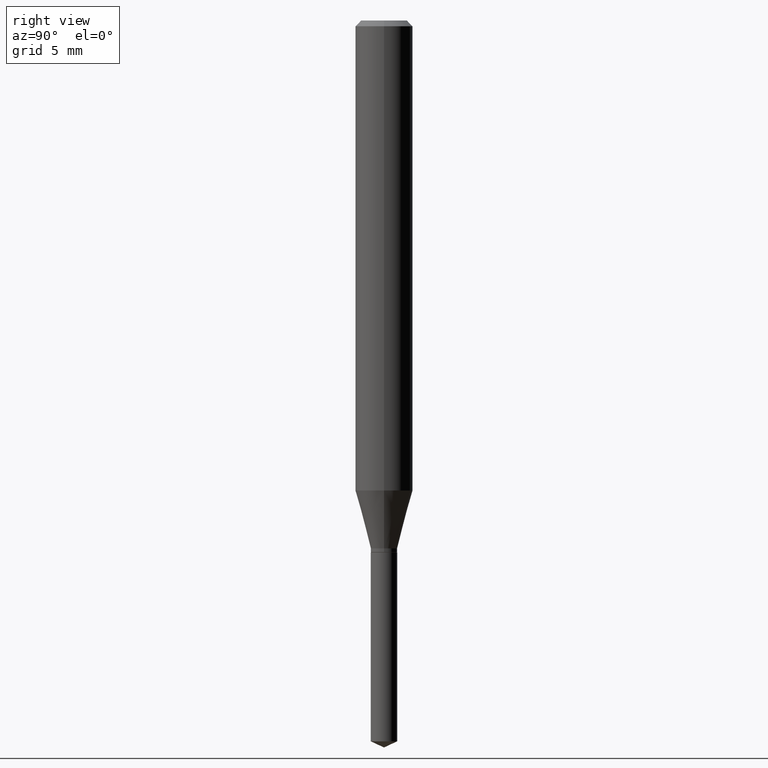
[diagram: clean part render]
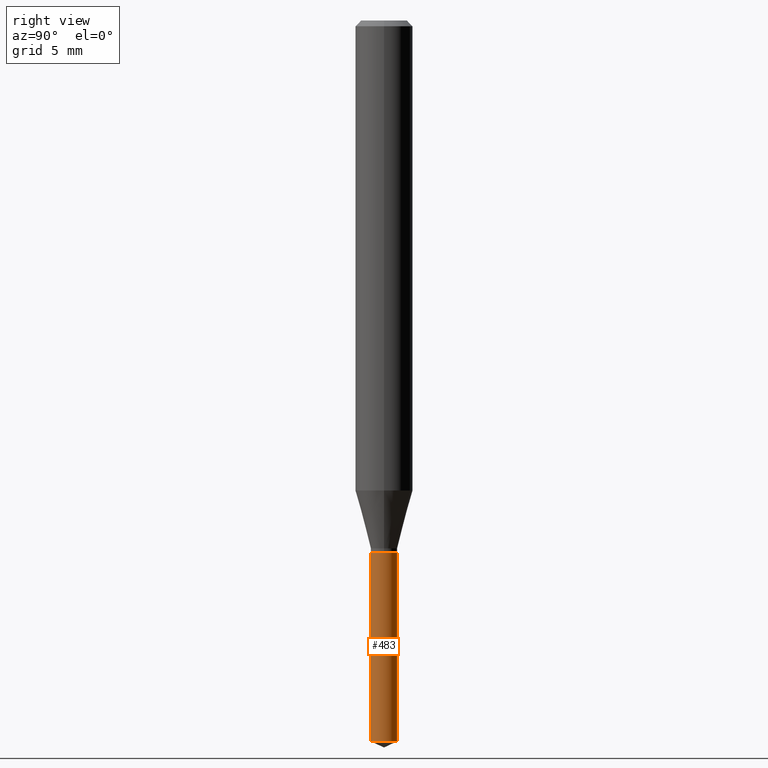
[diagram: same view with one face highlighted and labeled with its STEP entity id]
A machine part, right view. The second image highlights one B-rep face of the part: STEP entity #483.
In plain terms, the highlighted cylindrical surface (edge-blend (fillet) strip) has radius 0.6896 mm, axis along (-0, 0, 1).
Its self-contained STEP definition (entity closure, byte-faithful):
#1 = EDGE_CURVE ( 'NONE', #100, #319, #302, .T. ) ;
#7 = FACE_OUTER_BOUND ( 'NONE', #132, .T. ) ;
#15 = DIRECTION ( 'NONE',  ( -6.982962677686266711E-15, -1.000000000000000000, 0.000000000000000000 ) ) ;
#22 = AXIS2_PLACEMENT_3D ( 'NONE', #318, #199, #15 ) ;
#36 = CYLINDRICAL_SURFACE ( 'NONE', #50, 0.02715000000000000052 ) ;
#50 = AXIS2_PLACEMENT_3D ( 'NONE', #408, #67, #345 ) ;
#60 = DIRECTION ( 'NONE',  ( -2.445470214571802116E-29, 3.491479321953280158E-15, 1.000000000000000000 ) ) ;
#67 = DIRECTION ( 'NONE',  ( -2.445470214571802116E-29, 3.491479321953280158E-15, 1.000000000000000000 ) ) ;
#100 = VERTEX_POINT ( 'NONE', #446 ) ;
#110 = LINE ( 'NONE', #146, #283 ) ;
#116 = CARTESIAN_POINT ( 'NONE',  ( -1.895874366991458285E-16, -0.02715000000000517000, -1.483439747081091831 ) ) ;
#128 = ORIENTED_EDGE ( 'NONE', *, *, #1, .F. ) ;
#132 = EDGE_LOOP ( 'NONE', ( #138, #353, #128, #428 ) ) ;
#138 = ORIENTED_EDGE ( 'NONE', *, *, #360, .T. ) ;
#144 = VERTEX_POINT ( 'NONE', #116 ) ;
#146 = CARTESIAN_POINT ( 'NONE',  ( -1.895874366991553935E-16, -0.02715000000000382038, -1.094499999999999806 ) ) ;
#151 = CARTESIAN_POINT ( 'NONE',  ( 1.929123527588939268E-16, 0.02714999999999618066, -1.094500000000000028 ) ) ;
#170 = VERTEX_POINT ( 'NONE', #455 ) ;
#171 = EDGE_CURVE ( 'NONE', #170, #319, #374, .T. ) ;
#199 = DIRECTION ( 'NONE',  ( -2.445470214571802116E-29, 3.491479321953280158E-15, 1.000000000000000000 ) ) ;
#283 = VECTOR ( 'NONE', #338, 39.37007874015748143 ) ;
#287 = DIRECTION ( 'NONE',  ( -6.982962677686266711E-15, -1.000000000000000000, 5.031027612641368670E-15 ) ) ;
#289 = CIRCLE ( 'NONE', #22, 0.02715000000000000052 ) ;
#302 = CIRCLE ( 'NONE', #440, 0.02715000000000000052 ) ;
#318 = CARTESIAN_POINT ( 'NONE',  ( 3.627706175119532216E-29, -5.179401409783194451E-15, -1.483439747081091831 ) ) ;
#319 = VERTEX_POINT ( 'NONE', #343 ) ;
#327 = CARTESIAN_POINT ( 'NONE',  ( 2.676565608369631794E-29, -3.821426325363822773E-15, -1.094499999999999806 ) ) ;
#338 = DIRECTION ( 'NONE',  ( -2.445470214571802396E-29, 3.491479321953280158E-15, 1.000000000000000000 ) ) ;
#343 = CARTESIAN_POINT ( 'NONE',  ( 1.929123527589035411E-16, 0.02714999999999618413, -1.094500000000000028 ) ) ;
#345 = DIRECTION ( 'NONE',  ( -6.982962677686266711E-15, -1.000000000000000000, 5.031027612641368670E-15 ) ) ;
#352 = VECTOR ( 'NONE', #419, 39.37007874015748143 ) ;
#353 = ORIENTED_EDGE ( 'NONE', *, *, #171, .T. ) ;
#360 = EDGE_CURVE ( 'NONE', #144, #170, #289, .T. ) ;
#374 = LINE ( 'NONE', #151, #352 ) ;
#407 = EDGE_CURVE ( 'NONE', #144, #100, #110, .T. ) ;
#408 = CARTESIAN_POINT ( 'NONE',  ( 2.676565608369631794E-29, -3.821426325363822773E-15, -1.094499999999999806 ) ) ;
#419 = DIRECTION ( 'NONE',  ( -2.445470214571802396E-29, 3.491479321953280158E-15, 1.000000000000000000 ) ) ;
#428 = ORIENTED_EDGE ( 'NONE', *, *, #407, .F. ) ;
#440 = AXIS2_PLACEMENT_3D ( 'NONE', #327, #60, #287 ) ;
#446 = CARTESIAN_POINT ( 'NONE',  ( -1.895874366991553935E-16, -0.02715000000000382038, -1.094499999999999806 ) ) ;
#455 = CARTESIAN_POINT ( 'NONE',  ( 1.929123527589034178E-16, 0.02714999999999482064, -1.483439747081091831 ) ) ;
#483 = ADVANCED_FACE ( 'NONE', ( #7 ), #36, .T. ) ;